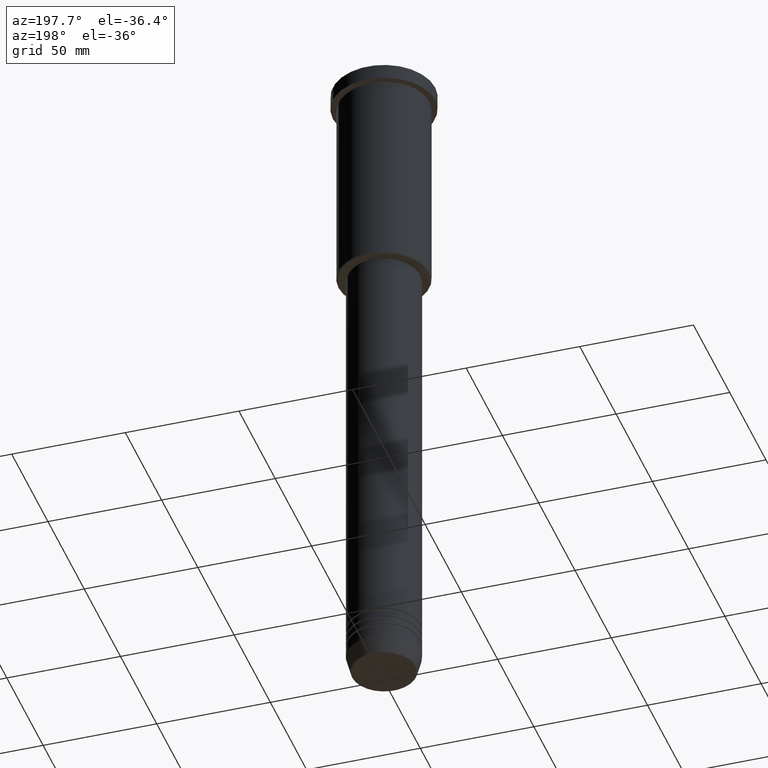
[diagram: clean part render]
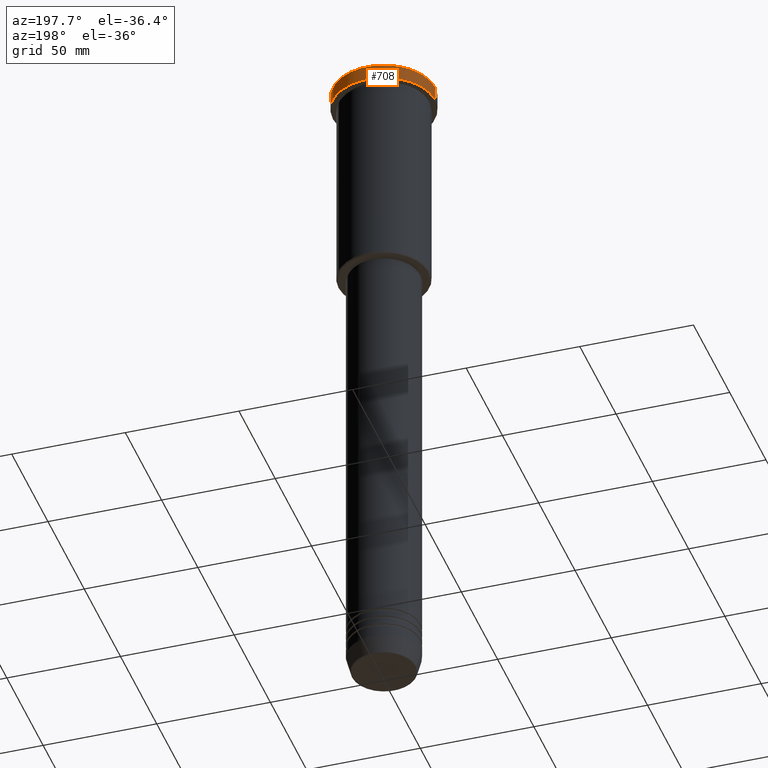
[diagram: same view with one face highlighted and labeled with its STEP entity id]
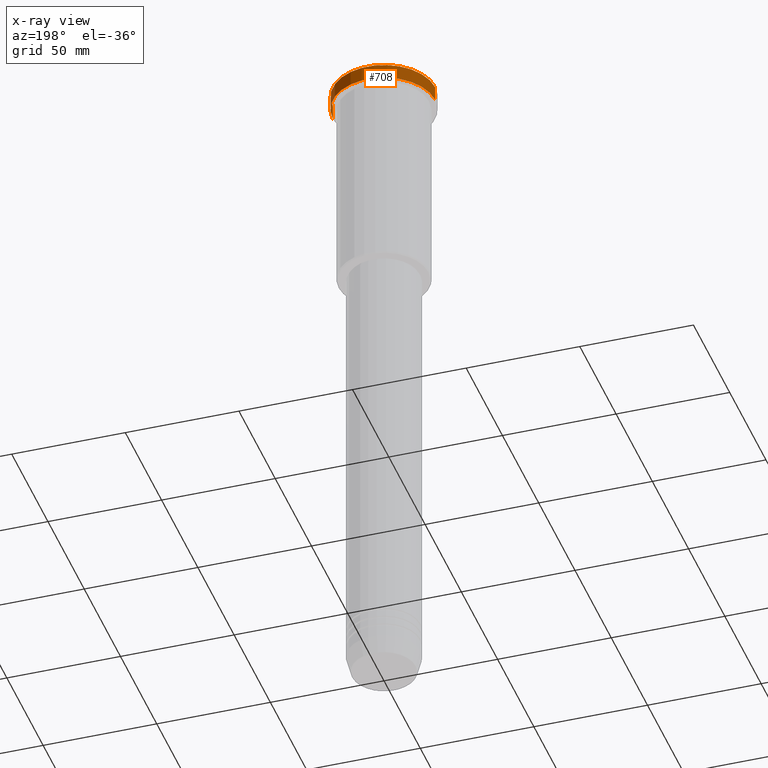
[diagram: x-ray of the same camera — body ghosted, the highlighted face saturated]
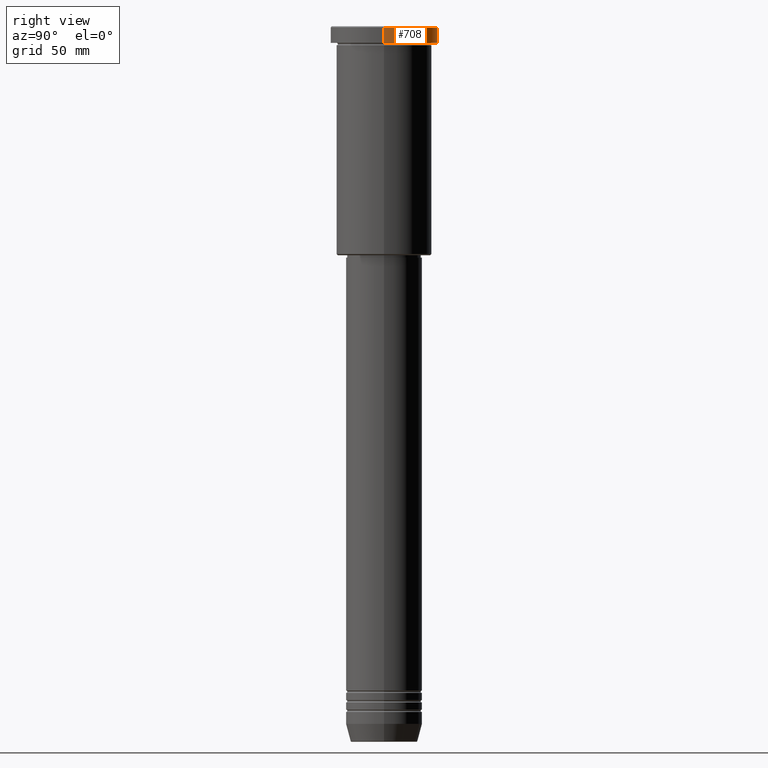
[diagram: same view with one face highlighted and labeled with its STEP entity id]
A machine part, auxiliary view. The second image highlights one B-rep face of the part: STEP entity #708.
The next image is the same camera in x-ray: the body ghosted, the highlighted face saturated — about 0% of this face is hidden behind the body in this view.
A second angle (right view) of the same face is appended — the face is thin or edge-on in the first view.
In plain terms, the highlighted cylindrical surface (partial cylindrical patch) has radius 22.5 mm, axis along (-0, -0, 1).
Its self-contained STEP definition (entity closure, byte-faithful):
#34 = DIRECTION ( 'NONE',  ( 1.000000000000000000, 0.000000000000000000, 0.000000000000000000 ) ) ;
#40 = VECTOR ( 'NONE', #273, 1000.000000000000000 ) ;
#88 = LINE ( 'NONE', #175, #40 ) ;
#121 = CARTESIAN_POINT ( 'NONE',  ( 0.000000000000000000, 0.000000000000000000, -0.4999999999999935052 ) ) ;
#124 = EDGE_CURVE ( 'NONE', #769, #1143, #735, .T. ) ;
#175 = CARTESIAN_POINT ( 'NONE',  ( 22.50000000000000000, 0.000000000000000000, 0.000000000000000000 ) ) ;
#220 = LINE ( 'NONE', #579, #739 ) ;
#230 = EDGE_CURVE ( 'NONE', #674, #769, #220, .T. ) ;
#273 = DIRECTION ( 'NONE',  ( -0.000000000000000000, -0.000000000000000000, 1.000000000000000000 ) ) ;
#285 = ORIENTED_EDGE ( 'NONE', *, *, #230, .T. ) ;
#313 = CARTESIAN_POINT ( 'NONE',  ( -22.50000000000000000, 2.755455298081544778E-15, -0.4999999999999935052 ) ) ;
#382 = CARTESIAN_POINT ( 'NONE',  ( 22.50000000000000000, 0.000000000000000000, -6.999999999999995559 ) ) ;
#391 = CYLINDRICAL_SURFACE ( 'NONE', #686, 22.50000000000000000 ) ;
#479 = DIRECTION ( 'NONE',  ( 1.000000000000000000, 0.000000000000000000, 0.000000000000000000 ) ) ;
#482 = DIRECTION ( 'NONE',  ( 1.000000000000000000, 0.000000000000000000, 0.000000000000000000 ) ) ;
#498 = CARTESIAN_POINT ( 'NONE',  ( 0.000000000000000000, 0.000000000000000000, 0.000000000000000000 ) ) ;
#508 = AXIS2_PLACEMENT_3D ( 'NONE', #781, #586, #479 ) ;
#579 = CARTESIAN_POINT ( 'NONE',  ( -22.50000000000000000, 2.755455298081544778E-15, 0.000000000000000000 ) ) ;
#586 = DIRECTION ( 'NONE',  ( -0.000000000000000000, -0.000000000000000000, 1.000000000000000000 ) ) ;
#606 = EDGE_LOOP ( 'NONE', ( #644, #285, #870, #822 ) ) ;
#644 = ORIENTED_EDGE ( 'NONE', *, *, #673, .T. ) ;
#673 = EDGE_CURVE ( 'NONE', #1153, #674, #689, .T. ) ;
#674 = VERTEX_POINT ( 'NONE', #1054 ) ;
#682 = DIRECTION ( 'NONE',  ( -0.000000000000000000, -0.000000000000000000, 1.000000000000000000 ) ) ;
#686 = AXIS2_PLACEMENT_3D ( 'NONE', #498, #682, #34 ) ;
#689 = CIRCLE ( 'NONE', #508, 22.50000000000000000 ) ;
#708 = ADVANCED_FACE ( 'NONE', ( #759 ), #391, .T. ) ;
#735 = CIRCLE ( 'NONE', #1037, 22.50000000000000000 ) ;
#739 = VECTOR ( 'NONE', #946, 1000.000000000000000 ) ;
#750 = CARTESIAN_POINT ( 'NONE',  ( 22.50000000000000000, 0.000000000000000000, -0.4999999999999935052 ) ) ;
#759 = FACE_OUTER_BOUND ( 'NONE', #606, .T. ) ;
#769 = VERTEX_POINT ( 'NONE', #313 ) ;
#781 = CARTESIAN_POINT ( 'NONE',  ( 0.000000000000000000, 0.000000000000000000, -6.999999999999995559 ) ) ;
#797 = EDGE_CURVE ( 'NONE', #1153, #1143, #88, .T. ) ;
#822 = ORIENTED_EDGE ( 'NONE', *, *, #797, .F. ) ;
#837 = DIRECTION ( 'NONE',  ( 0.000000000000000000, 0.000000000000000000, -1.000000000000000000 ) ) ;
#870 = ORIENTED_EDGE ( 'NONE', *, *, #124, .T. ) ;
#946 = DIRECTION ( 'NONE',  ( -0.000000000000000000, -0.000000000000000000, 1.000000000000000000 ) ) ;
#1037 = AXIS2_PLACEMENT_3D ( 'NONE', #121, #837, #482 ) ;
#1054 = CARTESIAN_POINT ( 'NONE',  ( -22.50000000000000000, 2.755455298081544778E-15, -6.999999999999995559 ) ) ;
#1143 = VERTEX_POINT ( 'NONE', #750 ) ;
#1153 = VERTEX_POINT ( 'NONE', #382 ) ;